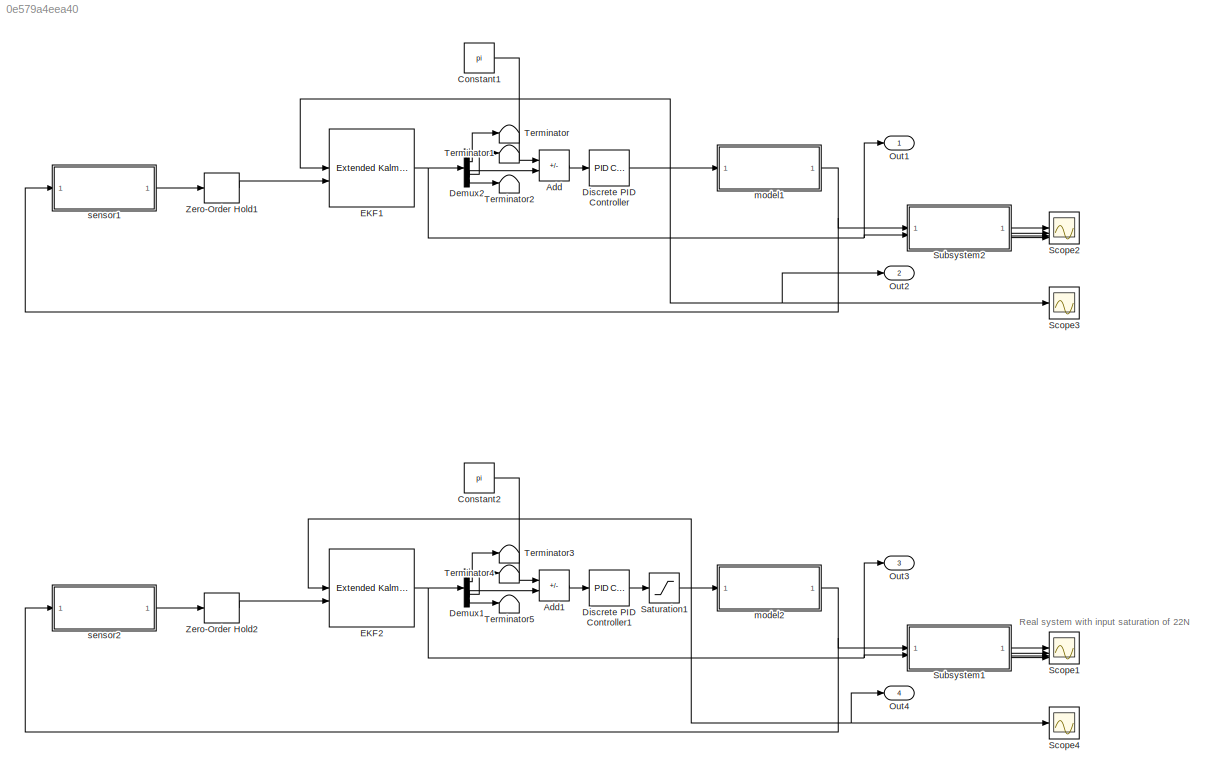
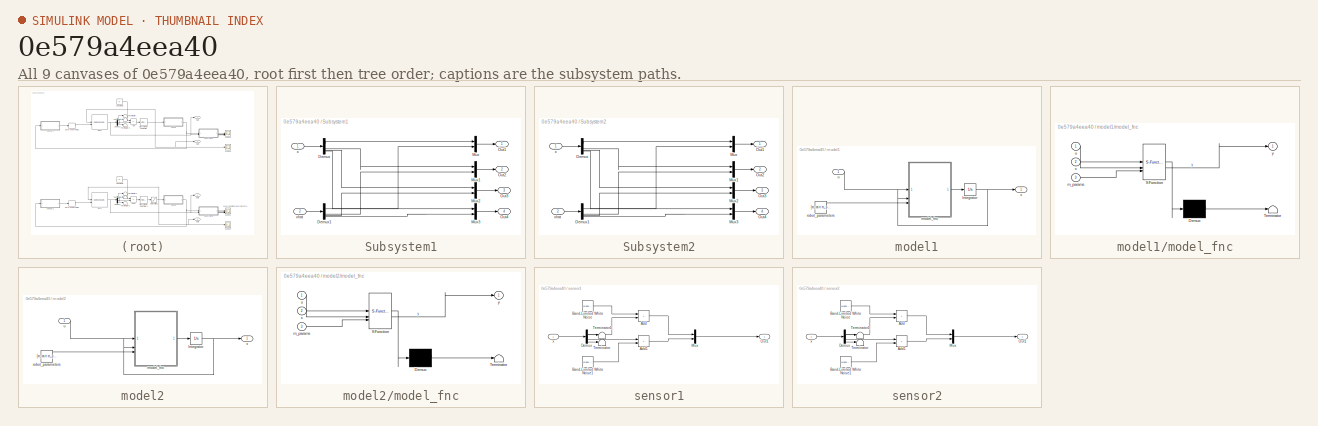
[diagram: thumbnail index - all 9 canvases of the model, root first then tree order]
MODEL slx_0e579a4eea40
KIND model
CONFIG AbsTol = auto
CONFIG EnableMultiTasking = off
CONFIG FixedStep = auto
CONFIG MaxStep = auto
CONFIG MinStep = auto
CONFIG RelTol = 1e-3
CONFIG SampleTimeConstraint = Unconstrained
CONFIG SolverName = VariableStepAuto
CONFIG StartTime = 0.0
CONFIG StopTime = 10.0
BLOCK [Sum] Add
  IconShape = rectangular
  Inputs = +-
BLOCK [Sum] Add1
  Commented = on
  IconShape = rectangular
  Inputs = +-
BLOCK [Constant] Constant1
  Value = pi
BLOCK [Constant] Constant2
  Commented = on
  Value = pi
BLOCK [Demux] Demux1
  Commented = on
BLOCK [Demux] Demux2
BLOCK [Reference] Discrete PID Controller  REF=slpidlib/PID Controller
  LibrarySourceBlock = simulink/Discrete/Discrete PID Controller
  SourceBlock = slpidlib/PID Controller
  SourceType = PID 1dof
BLOCK [Reference] Discrete PID Controller1  REF=slpidlib/PID Controller
  Commented = on
  LibrarySourceBlock = simulink/Discrete/Discrete PID Controller
  SourceBlock = slpidlib/PID Controller
  SourceType = PID 1dof
BLOCK [Reference] EKF1  REF=sharedTrackingLibrary/Extended Kalman Filter
  LibrarySourceBlock = cstblocks/State Estimation/Extended Kalman Filter
  SourceBlock = sharedTrackingLibrary/Extended Kalman Filter
  SourceType = Extended Kalman Filter
BLOCK [Reference] EKF2  REF=sharedTrackingLibrary/Extended Kalman Filter
  Commented = on
  LibrarySourceBlock = cstblocks/State Estimation/Extended Kalman Filter
  SourceBlock = sharedTrackingLibrary/Extended Kalman Filter
  SourceType = Extended Kalman Filter
BLOCK [Outport] Out1
BLOCK [Outport] Out2
  Port = 2
BLOCK [Outport] Out3
  Port = 3
BLOCK [Outport] Out4
  Port = 4
BLOCK [Saturate] Saturation1
  Commented = on
  LowerLimit = -22
  UpperLimit = 22
BLOCK [Scope] Scope1
  Commented = on
  Floating = off
  NumInputPorts = 4
  ScopeSpecificationString = Simulink.scopes.TimeScopeBlockCfg('CurrentConfiguration', extmgr.ConfigurationSet(extmgr.Configuration('Core','General UI',true),extmgr.Configuration('Core','Source UI',true),extmgr.Configuration('Sources','WiredSimulink',true,'DataLoggingVariableName','ScopeData1'),extmgr.Configuration('Visuals','Time Domain',true,'SerializedDisplays',{struct('MinYLimReal','-34.27207','MaxYLimReal','12.97756','YL...<+3591ch>
BLOCK [Scope] Scope2
  Floating = off
  NumInputPorts = 4
  ScopeSpecificationString = Simulink.scopes.TimeScopeBlockCfg('CurrentConfiguration', extmgr.ConfigurationSet(extmgr.Configuration('Core','General UI',true),extmgr.Configuration('Core','Source UI',true),extmgr.Configuration('Sources','WiredSimulink',true,'DataLoggingVariableName','ScopeData2'),extmgr.Configuration('Visuals','Time Domain',true,'SerializedDisplays',{struct('MinYLimReal','-2.17429','MaxYLimReal','1.18214','YLab...<+4336ch>
BLOCK [Scope] Scope3
  Floating = off
  NumInputPorts = 1
  ScopeSpecificationString = Simulink.scopes.TimeScopeBlockCfg('CurrentConfiguration', extmgr.ConfigurationSet(extmgr.Configuration('Core','General UI',true),extmgr.Configuration('Core','Source UI',true),extmgr.Configuration('Sources','WiredSimulink',true,'DataLoggingVariableName','ScopeData1'),extmgr.Configuration('Visuals','Time Domain',true,'SerializedDisplays',{struct('MinYLimReal','-14.72483','MaxYLimReal','79.97679','YL...<+1548ch>
BLOCK [Scope] Scope4
  Commented = on
  Floating = off
  NumInputPorts = 1
  ScopeSpecificationString = Simulink.scopes.TimeScopeBlockCfg('CurrentConfiguration', extmgr.ConfigurationSet(extmgr.Configuration('Core','General UI',true),extmgr.Configuration('Core','Source UI',true),extmgr.Configuration('Sources','WiredSimulink',true,'DataLoggingVariableName','ScopeData2'),extmgr.Configuration('Visuals','Time Domain',true,'SerializedDisplays',{struct('MinYLimReal','-23.35369','MaxYLimReal','18.35927','YL...<+1424ch>
BLOCK [SubSystem] Subsystem1
  Commented = on
BLOCK [Demux] Subsystem1/Demux
BLOCK [Demux] Subsystem1/Demux1
BLOCK [Mux] Subsystem1/Mux
  DisplayOption = bar
  Inputs = 2
BLOCK [Mux] Subsystem1/Mux1
  DisplayOption = bar
  Inputs = 2
BLOCK [Mux] Subsystem1/Mux2
  DisplayOption = bar
  Inputs = 2
BLOCK [Mux] Subsystem1/Mux3
  DisplayOption = bar
  Inputs = 2
BLOCK [Outport] Subsystem1/Out1
BLOCK [Outport] Subsystem1/Out2
  Port = 2
BLOCK [Outport] Subsystem1/Out3
  Port = 3
BLOCK [Outport] Subsystem1/Out4
  Port = 4
BLOCK [Inport] Subsystem1/x
BLOCK [Inport] Subsystem1/xhat
  Port = 2
BLOCK [SubSystem] Subsystem2
BLOCK [Demux] Subsystem2/Demux
BLOCK [Demux] Subsystem2/Demux1
BLOCK [Mux] Subsystem2/Mux
  DisplayOption = bar
  Inputs = 2
BLOCK [Mux] Subsystem2/Mux1
  DisplayOption = bar
  Inputs = 2
BLOCK [Mux] Subsystem2/Mux2
  DisplayOption = bar
  Inputs = 2
BLOCK [Mux] Subsystem2/Mux3
  DisplayOption = bar
  Inputs = 2
BLOCK [Outport] Subsystem2/Out1
BLOCK [Outport] Subsystem2/Out2
  Port = 2
BLOCK [Outport] Subsystem2/Out3
  Port = 3
BLOCK [Outport] Subsystem2/Out4
  Port = 4
BLOCK [Inport] Subsystem2/x
BLOCK [Inport] Subsystem2/xhat
  Port = 2
BLOCK [Terminator] Terminator
BLOCK [Terminator] Terminator1
BLOCK [Terminator] Terminator2
BLOCK [Terminator] Terminator3
  Commented = on
BLOCK [Terminator] Terminator4
  Commented = on
BLOCK [Terminator] Terminator5
  Commented = on
BLOCK [ZeroOrderHold] Zero-Order Hold1
  SampleTime = dt
BLOCK [ZeroOrderHold] Zero-Order Hold2
  Commented = on
  SampleTime = dt
BLOCK [SubSystem] model1
BLOCK [Integrator] model1/Integrator
  InitialCondition = x_init
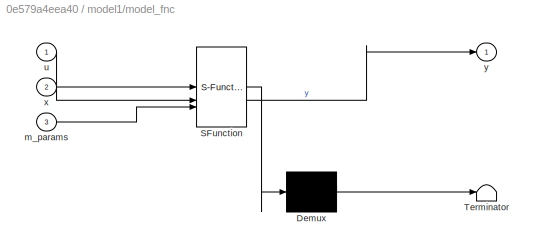
BLOCK [SubSystem] model1/model_fnc
  ErrorFcn = Stateflow.Translate.translate
  PermitHierarchicalResolution = ExplicitOnly
  SFBlockType = MATLAB Function
  TreatAsAtomicUnit = on
BLOCK [Demux] model1/model_fnc/ Demux 
  Outputs = 1
BLOCK [S-Function] model1/model_fnc/ SFunction 
  EnableBusSupport = on
  FunctionName = sf_sfun
  PortCounts = [3 2]
  SFcnIsStateOwnerBlock = off
  SFunctionDeploymentMode = off
  Tag = Stateflow S-Function 2
BLOCK [Terminator] model1/model_fnc/ Terminator 
BLOCK [Inport] model1/model_fnc/m_params
  Port = 3
BLOCK [Inport] model1/model_fnc/u
BLOCK [Inport] model1/model_fnc/x
  Port = 2
BLOCK [Outport] model1/model_fnc/y
  VectorParamsAs1DForOutWhenUnconnected = off
BLOCK [Constant] model1/robot_parameters
  Value = [m_cart m_pend I_pend l mu_drag g]
BLOCK [Inport] model1/u
BLOCK [Outport] model1/x
BLOCK [SubSystem] model2
  Commented = on
BLOCK [Integrator] model2/Integrator
  InitialCondition = x_init
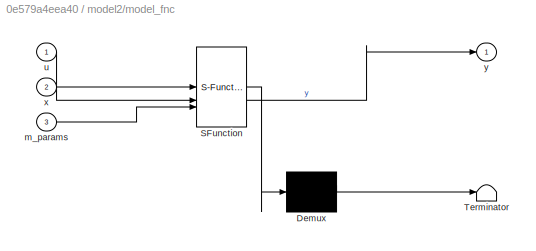
BLOCK [SubSystem] model2/model_fnc
  ErrorFcn = Stateflow.Translate.translate
  PermitHierarchicalResolution = ExplicitOnly
  SFBlockType = MATLAB Function
  TreatAsAtomicUnit = on
BLOCK [Demux] model2/model_fnc/ Demux 
  Outputs = 1
BLOCK [S-Function] model2/model_fnc/ SFunction 
  EnableBusSupport = on
  FunctionName = sf_sfun
  PortCounts = [3 2]
  SFcnIsStateOwnerBlock = off
  SFunctionDeploymentMode = off
  Tag = Stateflow S-Function 1
BLOCK [Terminator] model2/model_fnc/ Terminator 
BLOCK [Inport] model2/model_fnc/m_params
  Port = 3
BLOCK [Inport] model2/model_fnc/u
BLOCK [Inport] model2/model_fnc/x
  Port = 2
BLOCK [Outport] model2/model_fnc/y
  VectorParamsAs1DForOutWhenUnconnected = off
BLOCK [Constant] model2/robot_parameters
  Value = [m_cart m_pend I_pend l mu_drag g]
BLOCK [Inport] model2/u
BLOCK [Outport] model2/x
BLOCK [SubSystem] sensor1
BLOCK [Sum] sensor1/Add
  IconShape = rectangular
BLOCK [Sum] sensor1/Add1
  IconShape = rectangular
BLOCK [Reference] sensor1/Band-Limited White Noise  REF=simulink/Sources/Band-Limited
White Noise
  SourceBlock = simulink/Sources/Band-Limited\nWhite Noise
  SourceType = Band-Limited White Noise.
BLOCK [Reference] sensor1/Band-Limited White Noise1  REF=simulink/Sources/Band-Limited
White Noise
  SourceBlock = simulink/Sources/Band-Limited\nWhite Noise
  SourceType = Band-Limited White Noise.
BLOCK [Demux] sensor1/Demux
BLOCK [Mux] sensor1/Mux
  DisplayOption = bar
  Inputs = 2
BLOCK [Outport] sensor1/Out1
BLOCK [Terminator] sensor1/Terminator
BLOCK [Terminator] sensor1/Terminator1
BLOCK [Inport] sensor1/x
BLOCK [SubSystem] sensor2
  Commented = on
BLOCK [Sum] sensor2/Add
  IconShape = rectangular
BLOCK [Sum] sensor2/Add1
  IconShape = rectangular
BLOCK [Reference] sensor2/Band-Limited White Noise  REF=simulink/Sources/Band-Limited
White Noise
  SourceBlock = simulink/Sources/Band-Limited\nWhite Noise
  SourceType = Band-Limited White Noise.
BLOCK [Reference] sensor2/Band-Limited White Noise1  REF=simulink/Sources/Band-Limited
White Noise
  SourceBlock = simulink/Sources/Band-Limited\nWhite Noise
  SourceType = Band-Limited White Noise.
BLOCK [Demux] sensor2/Demux
BLOCK [Mux] sensor2/Mux
  DisplayOption = bar
  Inputs = 2
BLOCK [Outport] sensor2/Out1
BLOCK [Terminator] sensor2/Terminator
BLOCK [Terminator] sensor2/Terminator1
BLOCK [Inport] sensor2/x
ANNOTATION (root): Real system with input saturation of 22N
LINE Add1:1 -> Discrete PID Controller1:1
LINE Add:1 -> Discrete PID Controller:1
LINE Constant1:1 -> Add:1
LINE Constant2:1 -> Add1:1
LINE Demux1:1 -> Terminator3:1
LINE Demux1:2 -> Terminator4:1
LINE Demux1:3 -> Add1:2
LINE Demux1:4 -> Terminator5:1
LINE Demux2:1 -> Terminator:1
LINE Demux2:2 -> Terminator1:1
LINE Demux2:3 -> Add:2
LINE Demux2:4 -> Terminator2:1
LINE Discrete PID Controller1:1 -> Saturation1:1
NET Discrete PID Controller:1 -> EKF1:1, Out2:1, Scope3:1, model1:1
NET EKF1:1 -> Demux2:1, Out1:1, Subsystem2:2
NET EKF2:1 -> Demux1:1, Out3:1, Subsystem1:2
NET Saturation1:1 -> EKF2:1, Out4:1, Scope4:1, model2:1
LINE Subsystem1/Demux1:1 -> Subsystem1/Mux:2
LINE Subsystem1/Demux1:2 -> Subsystem1/Mux1:2
LINE Subsystem1/Demux1:3 -> Subsystem1/Mux2:2
LINE Subsystem1/Demux1:4 -> Subsystem1/Mux3:2
LINE Subsystem1/Demux:1 -> Subsystem1/Mux:1
LINE Subsystem1/Demux:2 -> Subsystem1/Mux1:1
LINE Subsystem1/Demux:3 -> Subsystem1/Mux2:1
LINE Subsystem1/Demux:4 -> Subsystem1/Mux3:1
LINE Subsystem1/Mux1:1 -> Subsystem1/Out2:1
LINE Subsystem1/Mux2:1 -> Subsystem1/Out3:1
LINE Subsystem1/Mux3:1 -> Subsystem1/Out4:1
LINE Subsystem1/Mux:1 -> Subsystem1/Out1:1
LINE Subsystem1/x:1 -> Subsystem1/Demux:1
LINE Subsystem1/xhat:1 -> Subsystem1/Demux1:1
LINE Subsystem1:1 -> Scope1:1
LINE Subsystem1:2 -> Scope1:2
LINE Subsystem1:3 -> Scope1:3
LINE Subsystem1:4 -> Scope1:4
LINE Subsystem2/Demux1:1 -> Subsystem2/Mux:2
LINE Subsystem2/Demux1:2 -> Subsystem2/Mux1:2
LINE Subsystem2/Demux1:3 -> Subsystem2/Mux2:2
LINE Subsystem2/Demux1:4 -> Subsystem2/Mux3:2
LINE Subsystem2/Demux:1 -> Subsystem2/Mux:1
LINE Subsystem2/Demux:2 -> Subsystem2/Mux1:1
LINE Subsystem2/Demux:3 -> Subsystem2/Mux2:1
LINE Subsystem2/Demux:4 -> Subsystem2/Mux3:1
LINE Subsystem2/Mux1:1 -> Subsystem2/Out2:1
LINE Subsystem2/Mux2:1 -> Subsystem2/Out3:1
LINE Subsystem2/Mux3:1 -> Subsystem2/Out4:1
LINE Subsystem2/Mux:1 -> Subsystem2/Out1:1
LINE Subsystem2/x:1 -> Subsystem2/Demux:1
LINE Subsystem2/xhat:1 -> Subsystem2/Demux1:1
LINE Subsystem2:1 -> Scope2:1
LINE Subsystem2:2 -> Scope2:2
LINE Subsystem2:3 -> Scope2:3
LINE Subsystem2:4 -> Scope2:4
LINE Zero-Order Hold1:1 -> EKF1:2
LINE Zero-Order Hold2:1 -> EKF2:2
NET model1/Integrator:1 -> model1/model_fnc:2, model1/x:1
LINE model1/model_fnc:1 -> model1/Integrator:1
LINE model1/robot_parameters:1 -> model1/model_fnc:3
LINE model1/u:1 -> model1/model_fnc:1
NET model1:1 -> Subsystem2:1, sensor1:1
NET model2/Integrator:1 -> model2/model_fnc:2, model2/x:1
LINE model2/model_fnc:1 -> model2/Integrator:1
LINE model2/robot_parameters:1 -> model2/model_fnc:3
LINE model2/u:1 -> model2/model_fnc:1
NET model2:1 -> Subsystem1:1, sensor2:1
LINE sensor1/Add1:1 -> sensor1/Mux:2
LINE sensor1/Add:1 -> sensor1/Mux:1
LINE sensor1/Band-Limited White Noise1:1 -> sensor1/Add1:2
LINE sensor1/Band-Limited White Noise:1 -> sensor1/Add:1
LINE sensor1/Demux:1 -> sensor1/Add:2
LINE sensor1/Demux:2 -> sensor1/Terminator1:1
LINE sensor1/Demux:3 -> sensor1/Add1:1
LINE sensor1/Demux:4 -> sensor1/Terminator:1
LINE sensor1/Mux:1 -> sensor1/Out1:1
LINE sensor1/x:1 -> sensor1/Demux:1
LINE sensor1:1 -> Zero-Order Hold1:1
LINE sensor2/Add1:1 -> sensor2/Mux:2
LINE sensor2/Add:1 -> sensor2/Mux:1
LINE sensor2/Band-Limited White Noise1:1 -> sensor2/Add1:2
LINE sensor2/Band-Limited White Noise:1 -> sensor2/Add:1
LINE sensor2/Demux:1 -> sensor2/Add:2
LINE sensor2/Demux:2 -> sensor2/Terminator1:1
LINE sensor2/Demux:3 -> sensor2/Add1:1
LINE sensor2/Demux:4 -> sensor2/Terminator:1
LINE sensor2/Mux:1 -> sensor2/Out1:1
LINE sensor2/x:1 -> sensor2/Demux:1
LINE sensor2:1 -> Zero-Order Hold2:1
note: NET lines group one-source signal fan-out (src -> all destinations, sorted); 1:1 wires keep LINE
CHART model2/model_fnc states=1 transitions=1
  STATE_LABEL 'eML_blk_kernel()'
  STATE_LABEL "SCRIPT:\nfunction y = fcn(u, x, m_params)\n\n% This is the model without any measurement noise, we'll add it afterwards\n\n% IN THIS MODEL THE EQUATION UNSTABLE EQUILIBRIUM POINT IS [0, 0, PI, 0]\n% WHILE THE STABLE ONE IS [0, 0, 0, 0].\n\nm_cart = m_params(1);\nm_pend = m_params(2);\nI_pend = m_params(3);\nl = m_params(4);\nmu_drag = m_params(5);\ng = m_params(6);\n\nm_tot = m_cart + m_pend;\n\ndx1 = x(2);\ndx2 = ...<+332ch>"
CHART model1/model_fnc states=1 transitions=1
  STATE_LABEL 'eML_blk_kernel()'
  STATE_LABEL "SCRIPT:\nfunction y = fcn(u, x, m_params)\n\n% This is the model without any measurement noise, we'll add it afterwards\n\n% IN THIS MODEL THE EQUATION UNSTABLE EQUILIBRIUM POINT IS [0, 0, PI, 0]\n% WHILE THE STABLE ONE IS [0, 0, 0, 0].\n\nm_cart = m_params(1);\nm_pend = m_params(2);\nI_pend = m_params(3);\nl = m_params(4);\nmu_drag = m_params(5);\ng = m_params(6);\n\nm_tot = m_cart + m_pend;\n\ndx1 = x(2);\ndx2 = ...<+332ch>"
CHART  states=0 transitions=0
CHART  states=0 transitions=0
